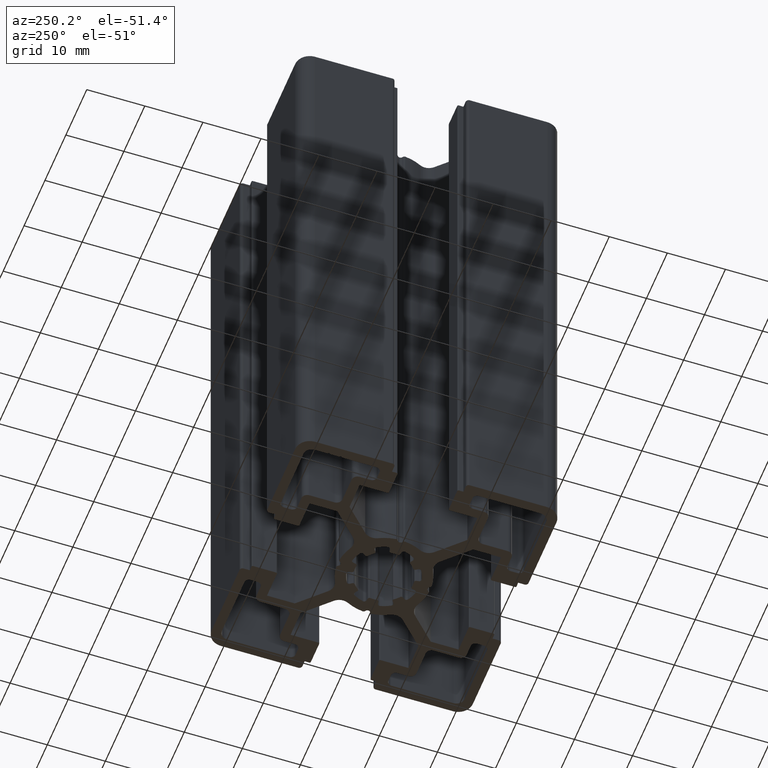
[diagram: clean part render]
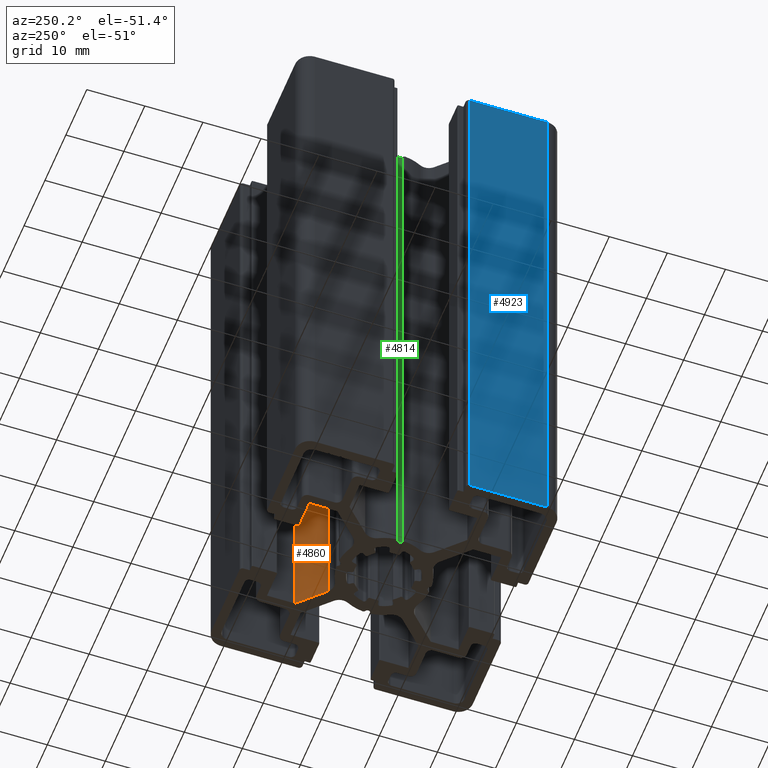
[diagram: same view with three faces highlighted in distinct colors, each labeled with its STEP entity id]
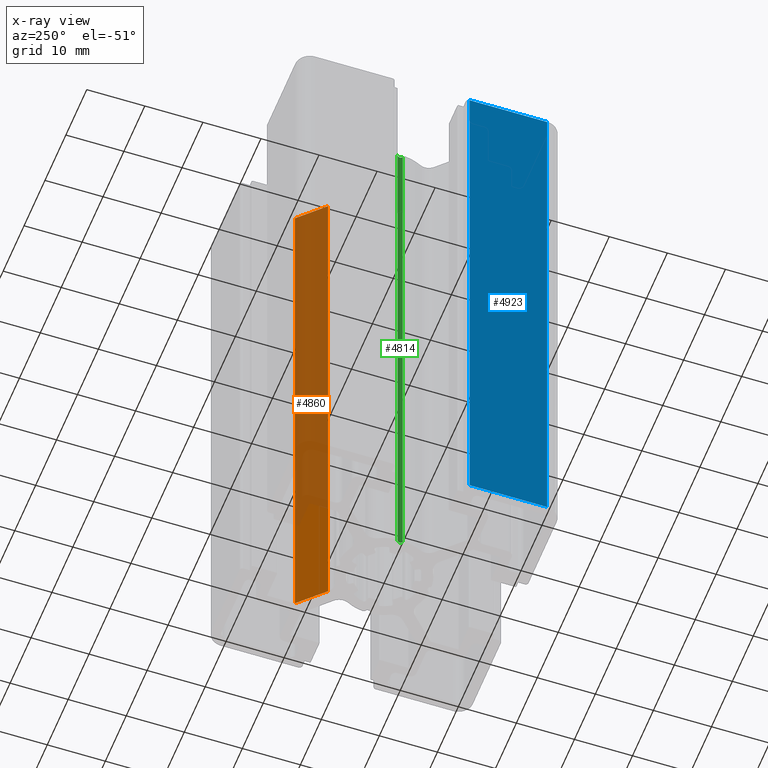
[diagram: x-ray of the same camera — body ghosted, the three highlighted faces saturated]
A machine part, auxiliary view with three faces highlighted in distinct colors.
The next image is the same camera in x-ray (body ghosted, the three faces saturated) — at least one of them is partly hidden behind the body in this view.
Their STEP definitions:

[orange] entity #4860 — the highlighted planar face has unit normal (0.7071, -0.7071, 0).
#604=FACE_OUTER_BOUND('',#852,.T.);
#852=EDGE_LOOP('',(#3785,#3786,#3787,#3788));
#1252=LINE('',#8001,#1718);
#1253=LINE('',#8005,#1719);
#1254=LINE('',#8007,#1720);
#1255=LINE('',#8008,#1721);
#1718=VECTOR('',#6518,100.);
#1719=VECTOR('',#6523,5.94690238006725);
#1720=VECTOR('',#6524,100.);
#1721=VECTOR('',#6525,5.94690238006725);
#2217=VERTEX_POINT('',#7998);
#2218=VERTEX_POINT('',#8000);
#2219=VERTEX_POINT('',#8004);
#2220=VERTEX_POINT('',#8006);
#2877=EDGE_CURVE('',#2218,#2217,#1252,.T.);
#2879=EDGE_CURVE('',#2219,#2217,#1253,.T.);
#2880=EDGE_CURVE('',#2220,#2219,#1254,.T.);
#2881=EDGE_CURVE('',#2218,#2220,#1255,.T.);
#3785=ORIENTED_EDGE('',*,*,#2879,.F.);
#3786=ORIENTED_EDGE('',*,*,#2880,.F.);
#3787=ORIENTED_EDGE('',*,*,#2881,.F.);
#3788=ORIENTED_EDGE('',*,*,#2877,.T.);
#4647=PLANE('',#5312);
#4860=ADVANCED_FACE('',(#604),#4647,.F.);
#5312=AXIS2_PLACEMENT_3D('',#8003,#6521,#6522);
#6518=DIRECTION('',(0.,0.,1.));
#6521=DIRECTION('center_axis',(0.707106781186557,-0.707106781186538,0.));
#6522=DIRECTION('ref_axis',(0.707106781186538,0.707106781186557,0.));
#6523=DIRECTION('',(-0.707106781186538,-0.707106781186557,0.));
#6524=DIRECTION('',(0.,0.,1.));
#6525=DIRECTION('',(0.707106781186538,0.707106781186557,0.));
#7998=CARTESIAN_POINT('',(5.94490547346525,7.50053941260415,100.));
#8000=CARTESIAN_POINT('',(5.94490547346525,7.50053941260415,0.));
#8001=CARTESIAN_POINT('',(5.94490547346525,7.50053941260415,0.));
#8003=CARTESIAN_POINT('Origin',(5.94490547346525,7.50053941260415,0.));
#8004=CARTESIAN_POINT('',(10.1500004734652,11.7056344126042,100.));
#8005=CARTESIAN_POINT('',(2.58354425194794,4.13917819108675,100.));
#8006=CARTESIAN_POINT('',(10.1500004734652,11.7056344126042,0.));
#8007=CARTESIAN_POINT('',(10.1500004734652,11.7056344126042,0.));
#8008=CARTESIAN_POINT('',(2.58354425194794,4.13917819108675,0.));

[blue] entity #4923 — the highlighted planar face has unit normal (-1, 0, 0).
#667=FACE_OUTER_BOUND('',#915,.T.);
#915=EDGE_LOOP('',(#4037,#4038,#4039,#4040));
#1189=LINE('',#7807,#1655);
#1381=LINE('',#8386,#1847);
#1382=LINE('',#8388,#1848);
#1383=LINE('',#8389,#1849);
#1655=VECTOR('',#6325,100.);
#1847=VECTOR('',#6901,13.3499998981587);
#1848=VECTOR('',#6902,100.);
#1849=VECTOR('',#6903,13.3499998981587);
#2150=VERTEX_POINT('',#7801);
#2152=VERTEX_POINT('',#7805);
#2347=VERTEX_POINT('',#8385);
#2348=VERTEX_POINT('',#8387);
#2781=EDGE_CURVE('',#2150,#2152,#1189,.T.);
#3069=EDGE_CURVE('',#2347,#2152,#1381,.T.);
#3070=EDGE_CURVE('',#2347,#2348,#1382,.T.);
#3071=EDGE_CURVE('',#2348,#2150,#1383,.T.);
#4037=ORIENTED_EDGE('',*,*,#2781,.T.);
#4038=ORIENTED_EDGE('',*,*,#3069,.F.);
#4039=ORIENTED_EDGE('',*,*,#3070,.T.);
#4040=ORIENTED_EDGE('',*,*,#3071,.T.);
#4679=PLANE('',#5437);
#4923=ADVANCED_FACE('',(#667),#4679,.T.);
#5437=AXIS2_PLACEMENT_3D('',#8384,#6899,#6900);
#6325=DIRECTION('',(0.,0.,-1.));
#6899=DIRECTION('center_axis',(-1.,2.22044604925031E-16,0.));
#6900=DIRECTION('ref_axis',(-3.5527136788005E-16,-1.,0.));
#6901=DIRECTION('',(2.22044604925031E-16,1.,0.));
#6902=DIRECTION('',(0.,0.,1.));
#6903=DIRECTION('',(2.22044604925031E-16,1.,0.));
#7801=CARTESIAN_POINT('',(-22.4999990409808,-6.6500001018413,100.));
#7805=CARTESIAN_POINT('',(-22.4999990409808,-6.6500001018413,0.));
#7807=CARTESIAN_POINT('',(-22.5,-6.6500001018413,0.));
#8384=CARTESIAN_POINT('Origin',(-22.5,20.,0.));
#8385=CARTESIAN_POINT('',(-22.5,-20.,0.));
#8386=CARTESIAN_POINT('',(-22.5,10.,0.));
#8387=CARTESIAN_POINT('',(-22.5,-20.,100.));
#8388=CARTESIAN_POINT('',(-22.5,-20.,0.));
#8389=CARTESIAN_POINT('',(-22.5,10.,100.));

[green] entity #4814 — the highlighted cylindrical surface (edge-blend (fillet) strip) has radius 0.5 mm, axis along (0, 0, 1).
#177=CIRCLE('',#5217,0.5);
#178=CIRCLE('',#5218,0.5);
#373=CYLINDRICAL_SURFACE('',#5216,0.5);
#558=FACE_OUTER_BOUND('',#806,.T.);
#806=EDGE_LOOP('',(#3601,#3602,#3603,#3604));
#1162=LINE('',#7719,#1628);
#1163=LINE('',#7725,#1629);
#1628=VECTOR('',#6236,100.);
#1629=VECTOR('',#6243,100.);
#2121=VERTEX_POINT('',#7716);
#2122=VERTEX_POINT('',#7718);
#2123=VERTEX_POINT('',#7722);
#2124=VERTEX_POINT('',#7724);
#2737=EDGE_CURVE('',#2122,#2121,#1162,.T.);
#2739=EDGE_CURVE('',#2123,#2121,#177,.T.);
#2740=EDGE_CURVE('',#2124,#2123,#1163,.T.);
#2741=EDGE_CURVE('',#2122,#2124,#178,.T.);
#3601=ORIENTED_EDGE('',*,*,#2739,.F.);
#3602=ORIENTED_EDGE('',*,*,#2740,.F.);
#3603=ORIENTED_EDGE('',*,*,#2741,.F.);
#3604=ORIENTED_EDGE('',*,*,#2737,.T.);
#4814=ADVANCED_FACE('',(#558),#373,.F.);
#5216=AXIS2_PLACEMENT_3D('',#7721,#6239,#6240);
#5217=AXIS2_PLACEMENT_3D('',#7723,#6241,#6242);
#5218=AXIS2_PLACEMENT_3D('',#7726,#6244,#6245);
#6236=DIRECTION('',(0.,0.,1.));
#6239=DIRECTION('center_axis',(0.,0.,1.));
#6240=DIRECTION('ref_axis',(0.4895833338786,-0.871956512211656,0.));
#6241=DIRECTION('center_axis',(0.,0.,-1.));
#6242=DIRECTION('ref_axis',(0.4895833338786,-0.871956512211656,0.));
#6243=DIRECTION('',(0.,0.,1.));
#6244=DIRECTION('center_axis',(0.,0.,1.));
#6245=DIRECTION('ref_axis',(0.4895833338786,-0.871956512211656,0.));
#7716=CARTESIAN_POINT('',(-7.7552077587283,-0.435978600724498,100.));
#7718=CARTESIAN_POINT('',(-7.7552077587283,-0.435978600724498,0.));
#7719=CARTESIAN_POINT('',(-7.7552077587283,-0.435978600724498,0.));
#7721=CARTESIAN_POINT('Origin',(-7.9999994256676,-3.44618671377361E-7,0.));
#7722=CARTESIAN_POINT('',(-7.7552077587283,0.435977911487155,100.));
#7723=CARTESIAN_POINT('Origin',(-7.9999994256676,-3.44618671377361E-7,100.));
#7724=CARTESIAN_POINT('',(-7.7552077587283,0.435977911487155,0.));
#7725=CARTESIAN_POINT('',(-7.7552077587283,0.435977911487155,0.));
#7726=CARTESIAN_POINT('Origin',(-7.9999994256676,-3.44618671377361E-7,0.));